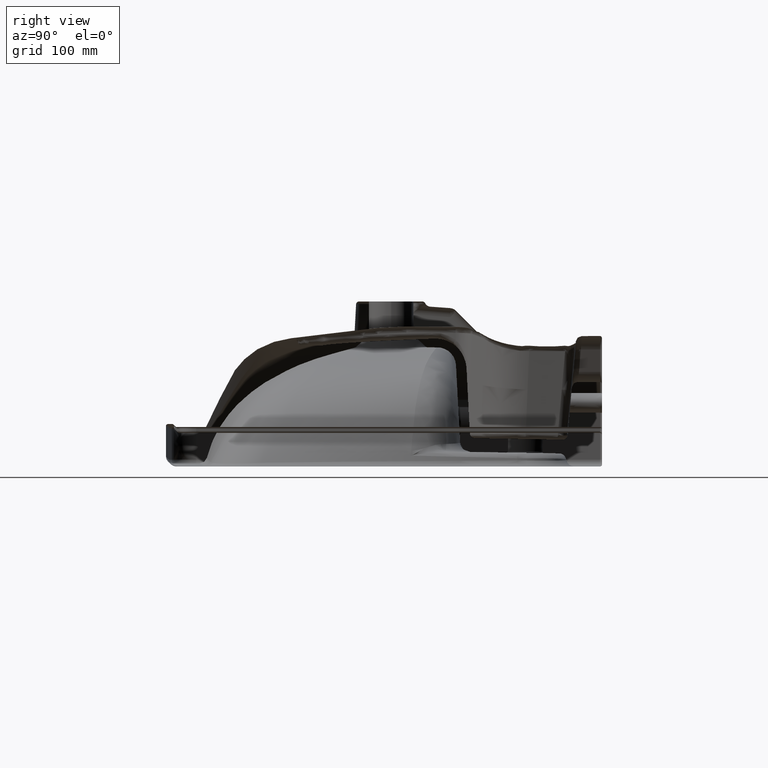
[diagram: clean part render]
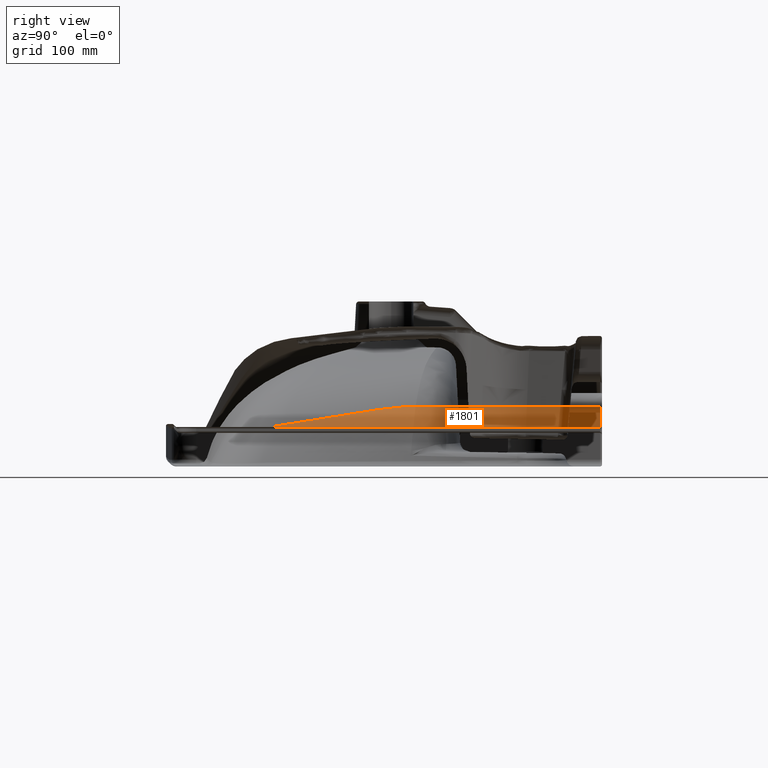
[diagram: same view with one face highlighted and labeled with its STEP entity id]
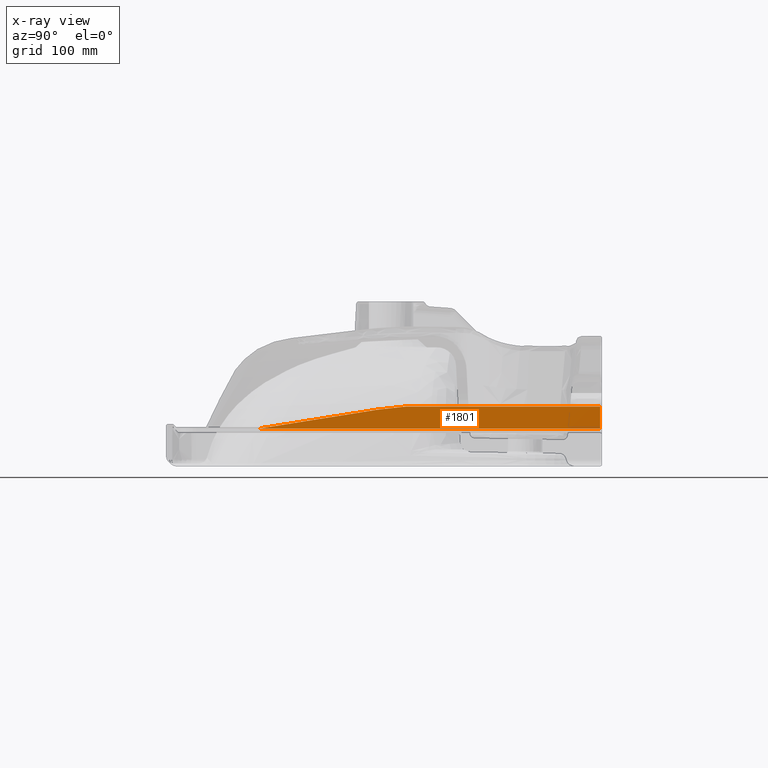
[diagram: x-ray of the same camera — body ghosted, the highlighted face saturated]
A machine part, right view. The second image highlights one B-rep face of the part: STEP entity #1801.
The next image is the same camera in x-ray: the body ghosted, the highlighted face saturated — about 0% of this face is hidden behind the body in this view.
In plain terms, the highlighted planar face has unit normal (0.9848, 0, 0.1736).
Its self-contained STEP definition (entity closure, byte-faithful):
#1045=LINE('',#24499,#1305);
#1046=LINE('',#24501,#1306);
#1047=LINE('',#24503,#1307);
#1305=VECTOR('',#10096,1.);
#1306=VECTOR('',#10099,1.);
#1307=VECTOR('',#10100,1.);
#1801=ADVANCED_FACE('',(#2431),#2015,.T.);
#2015=PLANE('',#9014);
#2431=FACE_OUTER_BOUND('',#2978,.T.);
#2978=EDGE_LOOP('',(#5009,#5010,#5011,#5012,#5013,#5014));
#5009=ORIENTED_EDGE('',*,*,#7597,.T.);
#5010=ORIENTED_EDGE('',*,*,#7598,.T.);
#5011=ORIENTED_EDGE('',*,*,#7599,.T.);
#5012=ORIENTED_EDGE('',*,*,#7533,.T.);
#5013=ORIENTED_EDGE('',*,*,#7530,.T.);
#5014=ORIENTED_EDGE('',*,*,#7528,.T.);
#6395=VERTEX_POINT('',#23674);
#6397=VERTEX_POINT('',#23726);
#6398=VERTEX_POINT('',#23843);
#6400=VERTEX_POINT('',#23875);
#6435=VERTEX_POINT('',#24498);
#6436=VERTEX_POINT('',#24502);
#7528=EDGE_CURVE('',#6397,#6395,#8456,.T.);
#7530=EDGE_CURVE('',#6398,#6397,#8458,.T.);
#7533=EDGE_CURVE('',#6400,#6398,#8461,.T.);
#7597=EDGE_CURVE('',#6395,#6435,#1045,.T.);
#7598=EDGE_CURVE('',#6435,#6436,#1046,.T.);
#7599=EDGE_CURVE('',#6436,#6400,#1047,.T.);
#8456=B_SPLINE_CURVE_WITH_KNOTS('',3,(#23710,#23711,#23712,#23713,#23714,
#23715,#23716,#23717,#23718,#23719,#23720,#23721,#23722,#23723,#23724,#23725),
 .UNSPECIFIED.,.F.,.F.,(4,2,2,2,2,2,2,4),(0.,0.5,0.749999999999999,0.874999999999999,
0.906249999999999,0.9375,0.96875,1.),.UNSPECIFIED.);
#8458=B_SPLINE_CURVE_WITH_KNOTS('',3,(#23839,#23840,#23841,#23842),
 .UNSPECIFIED.,.F.,.F.,(4,4),(0.,1.),.UNSPECIFIED.);
#8461=B_SPLINE_CURVE_WITH_KNOTS('',3,(#23871,#23872,#23873,#23874),
 .UNSPECIFIED.,.F.,.F.,(4,4),(0.,1.),.UNSPECIFIED.);
#9014=AXIS2_PLACEMENT_3D('',#24504,#10101,#10102);
#10096=DIRECTION('',(0.,1.,0.));
#10099=DIRECTION('',(0.17364817766693,0.,-0.984807753012208));
#10100=DIRECTION('',(0.,-1.,0.));
#10101=DIRECTION('',(-0.984807753012208,0.,-0.17364817766693));
#10102=DIRECTION('',(-0.17364817766693,0.,0.984807753012208));
#23674=CARTESIAN_POINT('',(-238.868833120787,-104.554212753563,-40.1317591116653));
#23710=CARTESIAN_POINT('',(-235.471198849901,16.3053378905199,-59.4007005818507));
#23711=CARTESIAN_POINT('',(-236.215762306228,-3.75639272101464,-55.1780713884334));
#23712=CARTESIAN_POINT('',(-236.798819702321,-23.9641758143773,-51.8713885781758));
#23713=CARTESIAN_POINT('',(-237.495358818682,-54.4368611493078,-47.9211189509048));
#23714=CARTESIAN_POINT('',(-237.703146349593,-64.6171808549893,-46.7426973045063));
#23715=CARTESIAN_POINT('',(-238.00385536271,-79.8948661770241,-45.0372917454243));
#23716=CARTESIAN_POINT('',(-238.102415064468,-84.9885083075342,-44.478331900697));
#23717=CARTESIAN_POINT('',(-238.22525183138,-91.3557947831877,-43.7816899777259));
#23718=CARTESIAN_POINT('',(-238.249686618009,-92.6293374989814,-43.6431134165494));
#23719=CARTESIAN_POINT('',(-238.297243702505,-95.1772686453262,-43.373403787855));
#23720=CARTESIAN_POINT('',(-238.308881534888,-96.4766619488329,-43.3074023606429));
#23721=CARTESIAN_POINT('',(-238.394420421135,-98.9529553919525,-42.8222872302015));
#23722=CARTESIAN_POINT('',(-238.473141620288,-100.110040187878,-42.3758371246292));
#23723=CARTESIAN_POINT('',(-238.652322418244,-102.37519530226,-41.3596523227555));
#23724=CARTESIAN_POINT('',(-238.756637524219,-103.479792636186,-40.7680519587261));
#23725=CARTESIAN_POINT('',(-238.868833120787,-104.554212753563,-40.1317591116652));
#23726=CARTESIAN_POINT('',(-235.471755674305,16.3055299673486,-59.3975426737343));
#23839=CARTESIAN_POINT('',(-234.919733503131,44.7903957411845,-62.5282159771403));
#23840=CARTESIAN_POINT('',(-234.919454959331,35.2139412135445,-62.5297956775271));
#23841=CARTESIAN_POINT('',(-235.124573713647,25.6701750595778,-61.3665094153127));
#23842=CARTESIAN_POINT('',(-235.472277457241,16.3066658197998,-59.3945834956551));
#23843=CARTESIAN_POINT('',(-234.919633267348,44.7909452514144,-62.5287844387799));
#23871=CARTESIAN_POINT('',(-234.919589288364,211.409065376543,-62.529033859722));
#23872=CARTESIAN_POINT('',(-234.919589288364,155.869508831423,-62.529033859722));
#23873=CARTESIAN_POINT('',(-234.919589288364,100.329952286304,-62.529033859722));
#23874=CARTESIAN_POINT('',(-234.919589288364,44.7903957411845,-62.529033859722));
#23875=CARTESIAN_POINT('',(-234.919589288364,211.409065376543,-62.5290338597223));
#24498=CARTESIAN_POINT('',(-238.868833120787,241.,-40.1317591116654));
#24499=CARTESIAN_POINT('',(-238.868833120787,-232.,-40.1317591116654));
#24501=CARTESIAN_POINT('',(-233.673477531495,241.,-69.5960848116695));
#24502=CARTESIAN_POINT('',(-234.919589288364,241.,-62.5290338597227));
#24503=CARTESIAN_POINT('',(-234.919589288364,-232.,-62.5290338597227));
#24504=CARTESIAN_POINT('',(-233.673477531495,-232.,-69.5960848116695));